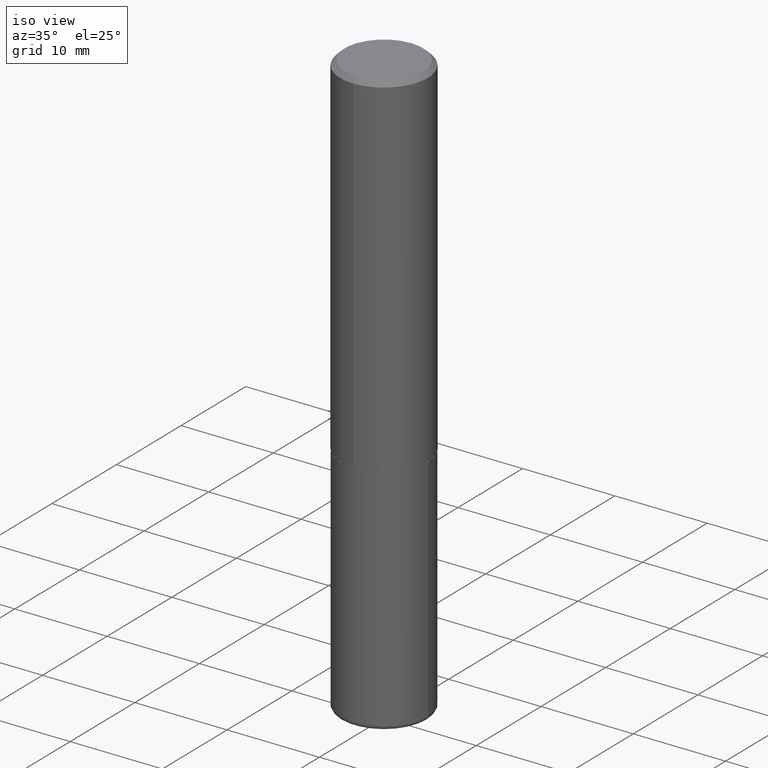
[diagram: clean part render]
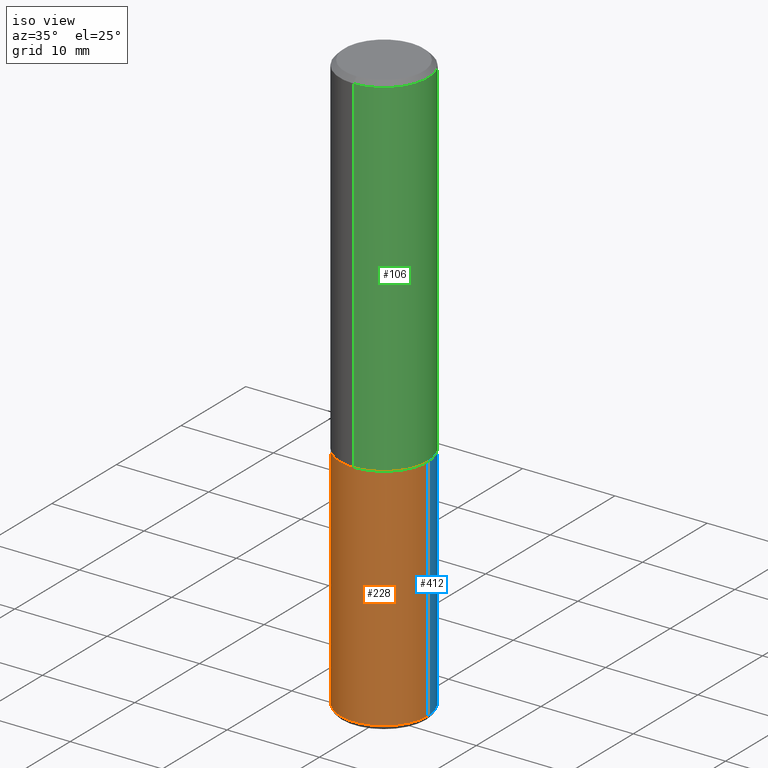
[diagram: same view with three faces highlighted in distinct colors, each labeled with its STEP entity id]
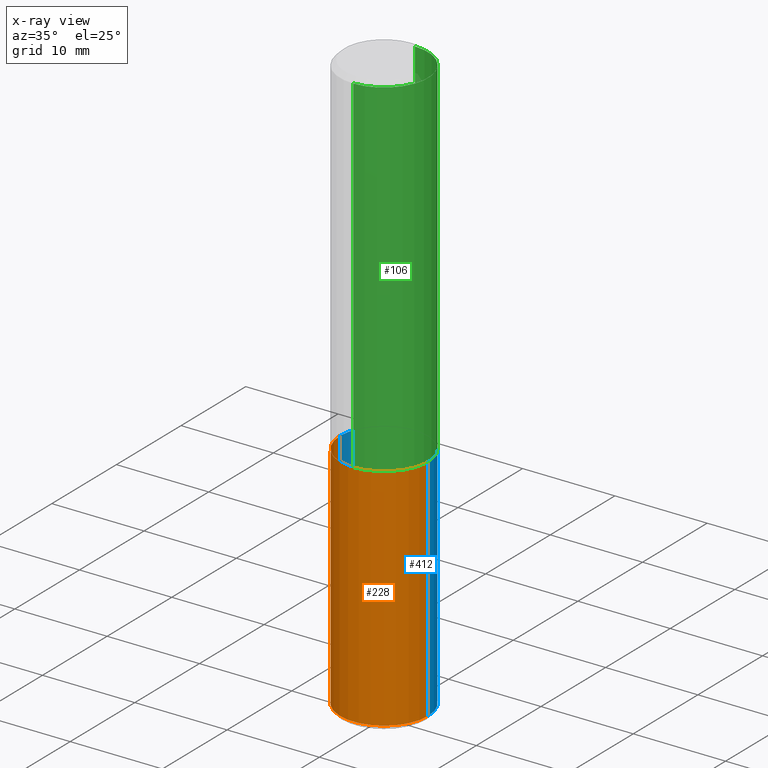
[diagram: x-ray of the same camera — body ghosted, the three highlighted faces saturated]
A machine part, iso view with three faces highlighted in distinct colors.
The next image is the same camera in x-ray (body ghosted, the three faces saturated) — at least one of them is partly hidden behind the body in this view.
Their STEP definitions:

[orange] entity #228 — the highlighted cylindrical surface (partial cylindrical patch) has radius 4.7625 mm, axis along (-0, 0, 1).
#6 = DIRECTION ( 'NONE',  ( 1.000000000000000000, -6.982962677686261189E-15, 0.000000000000000000 ) ) ;
#8 = CARTESIAN_POINT ( 'NONE',  ( 0.000000000000000000, 0.000000000000000000, 0.000000000000000000 ) ) ;
#38 = VERTEX_POINT ( 'NONE', #410 ) ;
#41 = ORIENTED_EDGE ( 'NONE', *, *, #214, .F. ) ;
#43 = CARTESIAN_POINT ( 'NONE',  ( -0.1875000000000000278, 1.332267629550188046E-15, -9.223003294227947991E-30 ) ) ;
#49 = ORIENTED_EDGE ( 'NONE', *, *, #206, .T. ) ;
#50 = CARTESIAN_POINT ( 'NONE',  ( 0.1875000000000001110, -9.968179222397176653E-15, -2.480000000000000426 ) ) ;
#52 = VECTOR ( 'NONE', #267, 39.37007874015748143 ) ;
#60 = EDGE_CURVE ( 'NONE', #342, #38, #223, .T. ) ;
#100 = CARTESIAN_POINT ( 'NONE',  ( 0.1875000000000000278, -1.309305502066175008E-15, 9.142831454617381013E-30 ) ) ;
#102 = LINE ( 'NONE', #100, #283 ) ;
#103 = ORIENTED_EDGE ( 'NONE', *, *, #187, .T. ) ;
#109 = EDGE_LOOP ( 'NONE', ( #41, #49, #103, #152 ) ) ;
#110 = CIRCLE ( 'NONE', #130, 0.1875000000000000278 ) ;
#111 = CYLINDRICAL_SURFACE ( 'NONE', #148, 0.1875000000000000278 ) ;
#112 = FACE_OUTER_BOUND ( 'NONE', #109, .T. ) ;
#130 = AXIS2_PLACEMENT_3D ( 'NONE', #189, #318, #6 ) ;
#148 = AXIS2_PLACEMENT_3D ( 'NONE', #8, #168, #234 ) ;
#152 = ORIENTED_EDGE ( 'NONE', *, *, #60, .F. ) ;
#162 = DIRECTION ( 'NONE',  ( 1.000000000000000000, -6.982962677686266711E-15, 0.000000000000000000 ) ) ;
#164 = DIRECTION ( 'NONE',  ( -2.445468806185136597E-29, 3.491481338843145583E-15, 1.000000000000000000 ) ) ;
#168 = DIRECTION ( 'NONE',  ( -2.445468806185136597E-29, 3.491481338843145583E-15, 1.000000000000000000 ) ) ;
#187 = EDGE_CURVE ( 'NONE', #402, #38, #102, .T. ) ;
#189 = CARTESIAN_POINT ( 'NONE',  ( 6.064762639339139522E-29, -8.658873720331001644E-15, -2.480000000000000426 ) ) ;
#191 = AXIS2_PLACEMENT_3D ( 'NONE', #260, #164, #162 ) ;
#206 = EDGE_CURVE ( 'NONE', #239, #402, #110, .T. ) ;
#214 = EDGE_CURVE ( 'NONE', #239, #342, #392, .T. ) ;
#223 = CIRCLE ( 'NONE', #191, 0.1875000000000000278 ) ;
#224 = DIRECTION ( 'NONE',  ( -2.445468806185136877E-29, 3.491481338843145188E-15, 1.000000000000000000 ) ) ;
#228 = ADVANCED_FACE ( 'NONE', ( #112 ), #111, .T. ) ;
#234 = DIRECTION ( 'NONE',  ( 1.000000000000000000, -6.982962677686265922E-15, 4.876176775795935793E-29 ) ) ;
#239 = VERTEX_POINT ( 'NONE', #265 ) ;
#260 = CARTESIAN_POINT ( 'NONE',  ( 3.668203209277704895E-29, -5.237222008264718177E-15, -1.500000000000000222 ) ) ;
#265 = CARTESIAN_POINT ( 'NONE',  ( -0.1875000000000001110, -7.326606090780813796E-15, -2.480000000000000426 ) ) ;
#267 = DIRECTION ( 'NONE',  ( -2.445468806185136877E-29, 3.491481338843145188E-15, 1.000000000000000000 ) ) ;
#283 = VECTOR ( 'NONE', #224, 39.37007874015748143 ) ;
#304 = CARTESIAN_POINT ( 'NONE',  ( -0.1875000000000000278, -5.615780234747672457E-15, -1.500000000000000222 ) ) ;
#318 = DIRECTION ( 'NONE',  ( -2.445468806185136597E-29, 3.491481338843145583E-15, 1.000000000000000000 ) ) ;
#342 = VERTEX_POINT ( 'NONE', #304 ) ;
#392 = LINE ( 'NONE', #43, #52 ) ;
#402 = VERTEX_POINT ( 'NONE', #50 ) ;
#410 = CARTESIAN_POINT ( 'NONE',  ( 0.1875000000000000278, -6.546527510330893974E-15, -1.500000000000000222 ) ) ;

[blue] entity #412 — the highlighted cylindrical surface (partial cylindrical patch) has radius 4.7625 mm, axis along (-0, 0, 1).
#3 = AXIS2_PLACEMENT_3D ( 'NONE', #240, #142, #248 ) ;
#14 = CIRCLE ( 'NONE', #3, 0.1875000000000000278 ) ;
#21 = DIRECTION ( 'NONE',  ( -2.445468806185136597E-29, 3.491481338843145583E-15, 1.000000000000000000 ) ) ;
#38 = VERTEX_POINT ( 'NONE', #410 ) ;
#43 = CARTESIAN_POINT ( 'NONE',  ( -0.1875000000000000278, 1.332267629550188046E-15, -9.223003294227947991E-30 ) ) ;
#50 = CARTESIAN_POINT ( 'NONE',  ( 0.1875000000000001110, -9.968179222397176653E-15, -2.480000000000000426 ) ) ;
#52 = VECTOR ( 'NONE', #267, 39.37007874015748143 ) ;
#77 = EDGE_CURVE ( 'NONE', #402, #239, #261, .T. ) ;
#91 = ORIENTED_EDGE ( 'NONE', *, *, #77, .T. ) ;
#100 = CARTESIAN_POINT ( 'NONE',  ( 0.1875000000000000278, -1.309305502066175008E-15, 9.142831454617381013E-30 ) ) ;
#102 = LINE ( 'NONE', #100, #283 ) ;
#105 = CARTESIAN_POINT ( 'NONE',  ( 6.064762639339139522E-29, -8.658873720331001644E-15, -2.480000000000000426 ) ) ;
#134 = DIRECTION ( 'NONE',  ( -2.445468806185136597E-29, 3.491481338843145583E-15, 1.000000000000000000 ) ) ;
#136 = AXIS2_PLACEMENT_3D ( 'NONE', #105, #134, #353 ) ;
#139 = ORIENTED_EDGE ( 'NONE', *, *, #298, .F. ) ;
#142 = DIRECTION ( 'NONE',  ( -2.445468806185136597E-29, 3.491481338843145583E-15, 1.000000000000000000 ) ) ;
#176 = FACE_OUTER_BOUND ( 'NONE', #395, .T. ) ;
#187 = EDGE_CURVE ( 'NONE', #402, #38, #102, .T. ) ;
#212 = ORIENTED_EDGE ( 'NONE', *, *, #214, .T. ) ;
#214 = EDGE_CURVE ( 'NONE', #239, #342, #392, .T. ) ;
#224 = DIRECTION ( 'NONE',  ( -2.445468806185136877E-29, 3.491481338843145188E-15, 1.000000000000000000 ) ) ;
#239 = VERTEX_POINT ( 'NONE', #265 ) ;
#240 = CARTESIAN_POINT ( 'NONE',  ( 3.668203209277704895E-29, -5.237222008264718177E-15, -1.500000000000000222 ) ) ;
#248 = DIRECTION ( 'NONE',  ( 1.000000000000000000, -6.982962677686266711E-15, 0.000000000000000000 ) ) ;
#261 = CIRCLE ( 'NONE', #136, 0.1875000000000000278 ) ;
#265 = CARTESIAN_POINT ( 'NONE',  ( -0.1875000000000001110, -7.326606090780813796E-15, -2.480000000000000426 ) ) ;
#267 = DIRECTION ( 'NONE',  ( -2.445468806185136877E-29, 3.491481338843145188E-15, 1.000000000000000000 ) ) ;
#283 = VECTOR ( 'NONE', #224, 39.37007874015748143 ) ;
#298 = EDGE_CURVE ( 'NONE', #38, #342, #14, .T. ) ;
#304 = CARTESIAN_POINT ( 'NONE',  ( -0.1875000000000000278, -5.615780234747672457E-15, -1.500000000000000222 ) ) ;
#307 = DIRECTION ( 'NONE',  ( 1.000000000000000000, -6.982962677686265922E-15, 4.876176775795935793E-29 ) ) ;
#311 = CARTESIAN_POINT ( 'NONE',  ( 0.000000000000000000, 0.000000000000000000, 0.000000000000000000 ) ) ;
#342 = VERTEX_POINT ( 'NONE', #304 ) ;
#343 = CYLINDRICAL_SURFACE ( 'NONE', #380, 0.1875000000000000278 ) ;
#353 = DIRECTION ( 'NONE',  ( 1.000000000000000000, -6.982962677686261189E-15, 0.000000000000000000 ) ) ;
#365 = ORIENTED_EDGE ( 'NONE', *, *, #187, .F. ) ;
#380 = AXIS2_PLACEMENT_3D ( 'NONE', #311, #21, #307 ) ;
#392 = LINE ( 'NONE', #43, #52 ) ;
#395 = EDGE_LOOP ( 'NONE', ( #91, #212, #139, #365 ) ) ;
#402 = VERTEX_POINT ( 'NONE', #50 ) ;
#410 = CARTESIAN_POINT ( 'NONE',  ( 0.1875000000000000278, -6.546527510330893974E-15, -1.500000000000000222 ) ) ;
#412 = ADVANCED_FACE ( 'NONE', ( #176 ), #343, .T. ) ;

[green] entity #106 — the highlighted cylindrical surface (partial cylindrical patch) has radius 4.7625 mm, axis along (-0, 0, 1).
#23 = CIRCLE ( 'NONE', #237, 0.1875000000000001943 ) ;
#28 = CARTESIAN_POINT ( 'NONE',  ( 4.891689785825187560E-31, -6.981885522487828820E-17, -0.02000000000000004205 ) ) ;
#32 = CARTESIAN_POINT ( 'NONE',  ( 3.666321494475970828E-29, -5.232923199104616895E-15, -1.499000000000000110 ) ) ;
#35 = CARTESIAN_POINT ( 'NONE',  ( -1.309305502066139509E-15, -0.1875000000000054123, -1.498999999999999444 ) ) ;
#53 = EDGE_CURVE ( 'NONE', #151, #406, #23, .T. ) ;
#63 = DIRECTION ( 'NONE',  ( -6.982962677686265922E-15, -1.000000000000000000, 2.913971193241877611E-15 ) ) ;
#70 = DIRECTION ( 'NONE',  ( -2.445844892912588876E-29, 3.490942761243906817E-15, 1.000000000000000000 ) ) ;
#74 = AXIS2_PLACEMENT_3D ( 'NONE', #28, #127, #257 ) ;
#82 = ORIENTED_EDGE ( 'NONE', *, *, #53, .T. ) ;
#93 = EDGE_LOOP ( 'NONE', ( #82, #368, #408, #173 ) ) ;
#94 = EDGE_CURVE ( 'NONE', #372, #119, #246, .T. ) ;
#106 = ADVANCED_FACE ( 'NONE', ( #417 ), #290, .T. ) ;
#119 = VERTEX_POINT ( 'NONE', #387 ) ;
#124 = AXIS2_PLACEMENT_3D ( 'NONE', #186, #287, #229 ) ;
#127 = DIRECTION ( 'NONE',  ( -2.445844892912588876E-29, 3.490942761243906817E-15, 1.000000000000000000 ) ) ;
#151 = VERTEX_POINT ( 'NONE', #35 ) ;
#159 = LINE ( 'NONE', #382, #296 ) ;
#161 = EDGE_CURVE ( 'NONE', #151, #372, #159, .T. ) ;
#173 = ORIENTED_EDGE ( 'NONE', *, *, #161, .F. ) ;
#181 = CARTESIAN_POINT ( 'NONE',  ( -1.286343374582161379E-15, -0.1875000000000000555, -0.01999999999999938979 ) ) ;
#185 = VECTOR ( 'NONE', #396, 39.37007874015748143 ) ;
#186 = CARTESIAN_POINT ( 'NONE',  ( 0.000000000000000000, 0.000000000000000000, 0.000000000000000000 ) ) ;
#229 = DIRECTION ( 'NONE',  ( -6.982962677686266711E-15, -1.000000000000000000, 3.490942761243906423E-15 ) ) ;
#235 = CARTESIAN_POINT ( 'NONE',  ( 1.332267629550206781E-15, 0.1874999999999949485, -1.499000000000000554 ) ) ;
#237 = AXIS2_PLACEMENT_3D ( 'NONE', #32, #70, #63 ) ;
#246 = CIRCLE ( 'NONE', #74, 0.1874999999999999722 ) ;
#253 = DIRECTION ( 'NONE',  ( -2.445844892912589156E-29, 3.490942761243906423E-15, 1.000000000000000000 ) ) ;
#257 = DIRECTION ( 'NONE',  ( -6.982962677686266711E-15, -1.000000000000000000, 3.483106191921935949E-15 ) ) ;
#287 = DIRECTION ( 'NONE',  ( -2.445844892912588876E-29, 3.490942761243906817E-15, 1.000000000000000000 ) ) ;
#290 = CYLINDRICAL_SURFACE ( 'NONE', #124, 0.1875000000000000833 ) ;
#296 = VECTOR ( 'NONE', #253, 39.37007874015748143 ) ;
#315 = EDGE_CURVE ( 'NONE', #406, #119, #407, .T. ) ;
#368 = ORIENTED_EDGE ( 'NONE', *, *, #315, .T. ) ;
#372 = VERTEX_POINT ( 'NONE', #181 ) ;
#373 = CARTESIAN_POINT ( 'NONE',  ( 1.332267629550188243E-15, 0.1875000000000000833, -6.545517677332327747E-16 ) ) ;
#382 = CARTESIAN_POINT ( 'NONE',  ( -1.309305502066175600E-15, -0.1875000000000000833, 6.545517677332327747E-16 ) ) ;
#387 = CARTESIAN_POINT ( 'NONE',  ( 1.309305502066175205E-15, 0.1874999999999999167, -0.02000000000000069431 ) ) ;
#396 = DIRECTION ( 'NONE',  ( -2.445844892912589156E-29, 3.490942761243906423E-15, 1.000000000000000000 ) ) ;
#406 = VERTEX_POINT ( 'NONE', #235 ) ;
#407 = LINE ( 'NONE', #373, #185 ) ;
#408 = ORIENTED_EDGE ( 'NONE', *, *, #94, .F. ) ;
#417 = FACE_OUTER_BOUND ( 'NONE', #93, .T. ) ;